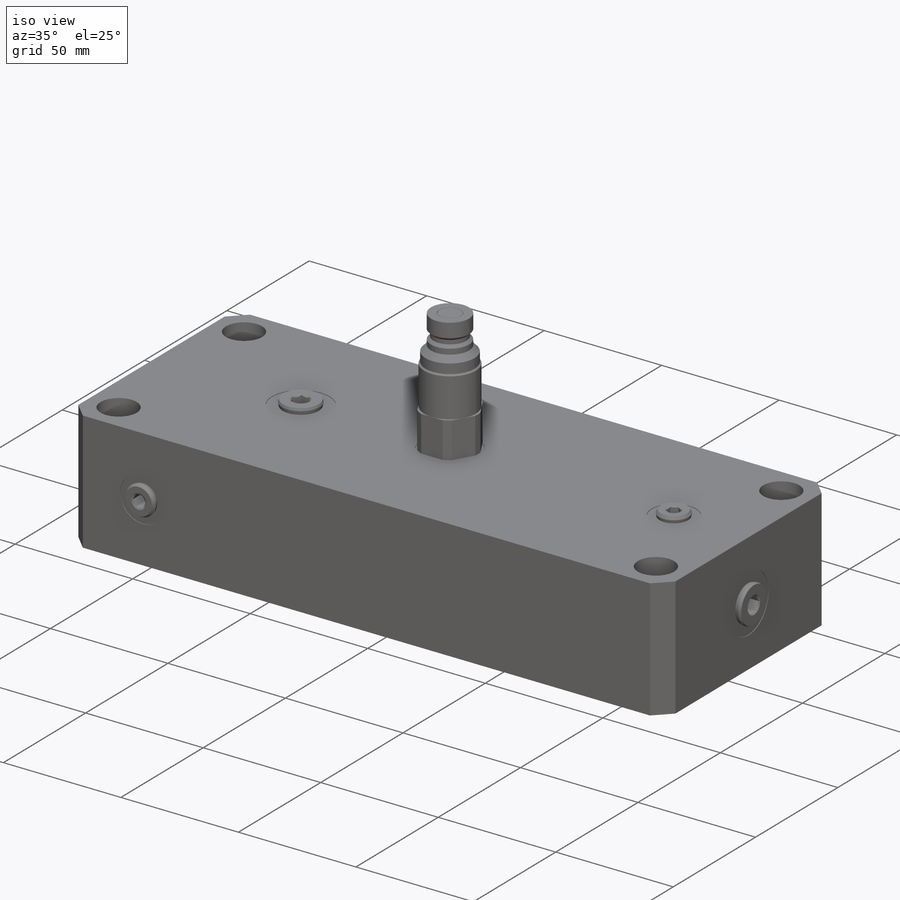
[diagram: iso view]
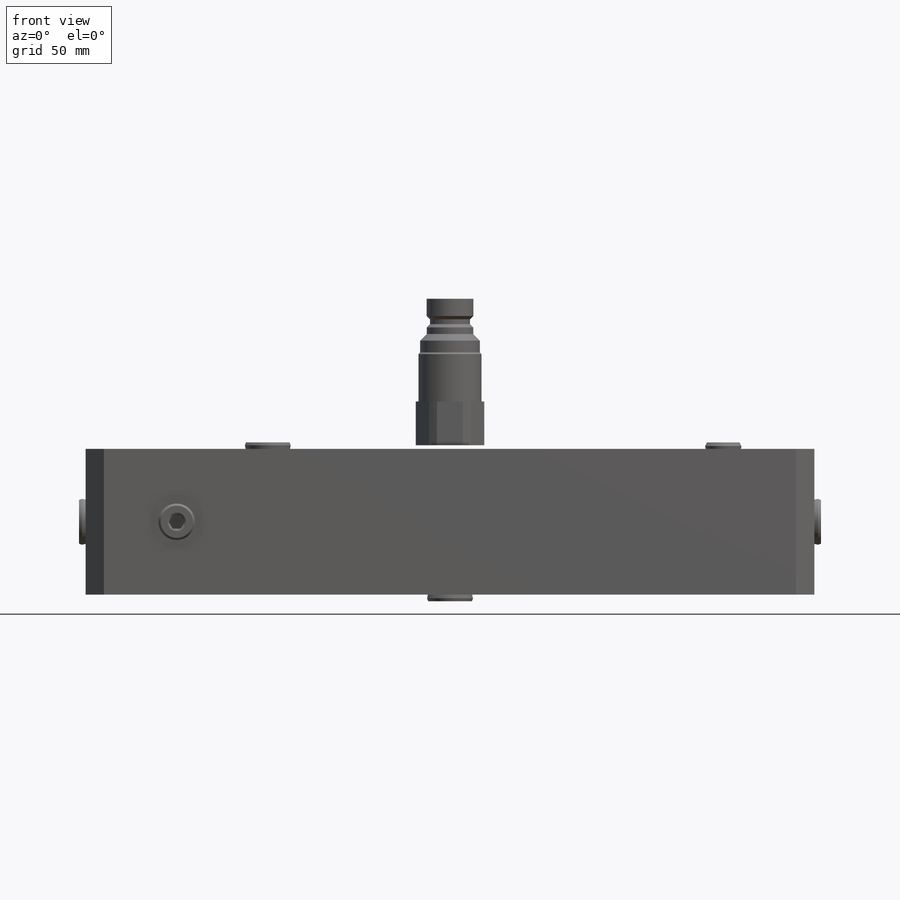
[diagram: front view]
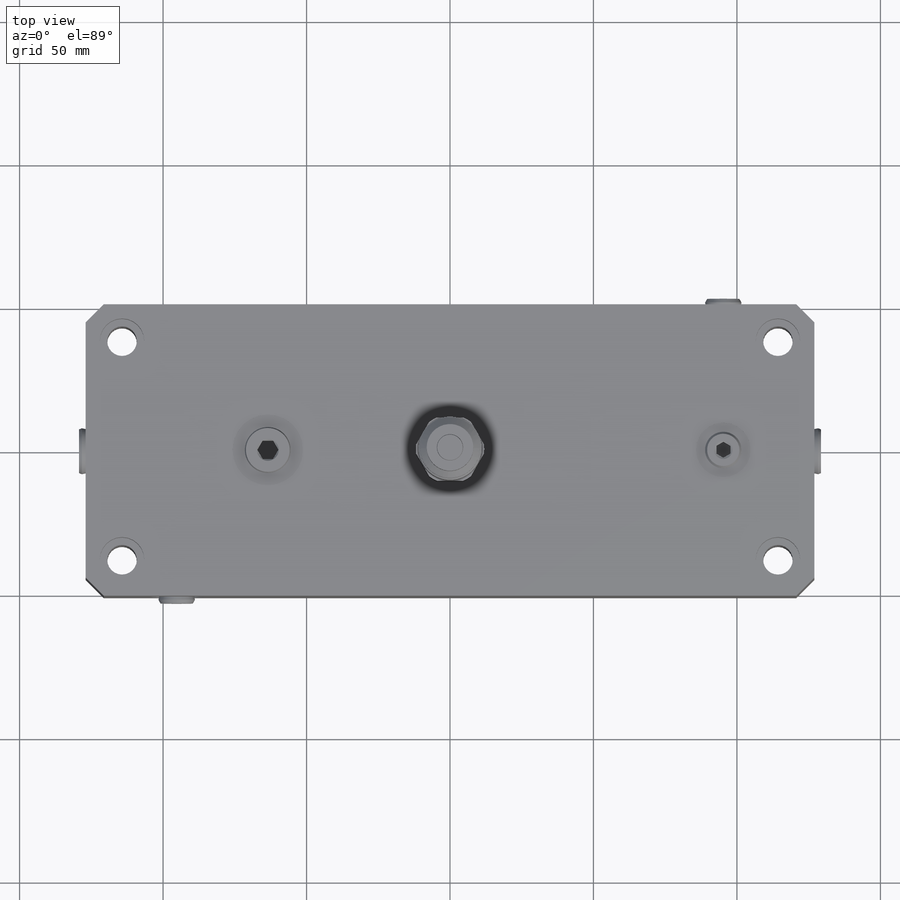
[diagram: top view]
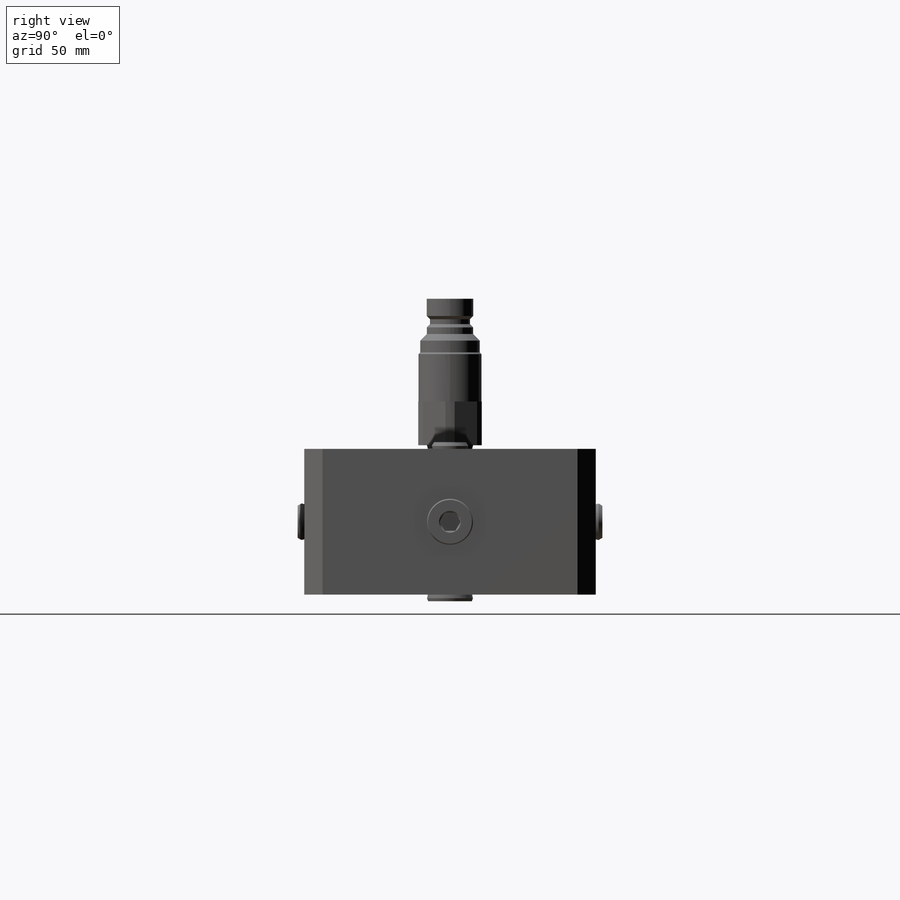
[diagram: right view]
SOLIDWORKS PART (.sldprt)
format: sldprt  version: not decoded by parser v0  size: 3,194,368 bytes
history: native  units: mm
features: sketch x17, move_body x16, hole x8, plane x6, material x1, extrude x1 + 16 further entries (+91 scaffold rows collapsed; 68 parser-record rows omitted)
feature tree (224):
  scaffold x91  (default folders/planes/origin — collapsed)
  material  "Material <not specified>"
  sketch  "Sketch1"  dims[c1.D1=~101.579808mm c1.D2=~251.393353mm c2.D1=101.6mm c2.D2=254.0mm]
  extrude  "Boss-Extrude1"  Depth=50.8mm
  hole  "CBORE for 3/8 Socket Head Cap Screw"  Diameter=10.3124mm Depth=50.8mm
  sketch  "Sketch3"  dims[D1=12.7mm D2=12.7mm D3=88.9mm D4=241.3mm]
  sketch  "Sketch2"  dims[hole-wizard template sketch: 42 standard entries collapsed; hole parameters kept: c12.Thru Hole Depth=50.8mm c12.C'Bore Dia.=15.4686mm c12.C'Bore Depth=9.525mm]
  hole  "SAE 6 Spot Face"  Diameter=7.62mm Depth=8.89mm
  sketch  "Sketch7"  dims[D1=63.5mm]
  sketch  "Sketch8"  dims[hole-wizard template sketch: 33 standard entries collapsed; hole parameters kept: c8.Drill Angle=180.0deg]
  hole  "SAE 6 Spot Face2"  Diameter=7.62mm Depth=8.89mm
  sketch  "Sketch10"  dims[D1=63.5mm]
  sketch  "Sketch11"  dims[hole-wizard template sketch: 33 standard entries collapsed; hole parameters kept: c8.Drill Angle=180.0deg]
  hole  "SAE 6 Spot Face3"  Diameter=7.62mm Depth=8.89mm
  sketch  "Sketch13"  dims[D1=25.4mm]
  sketch  "Sketch14"  dims[hole-wizard template sketch: 33 standard entries collapsed; hole parameters kept: c8.Drill Angle=180.0deg]
  hole  "SAE 6 Spot Face4"  Diameter=7.62mm Depth=8.89mm
  sketch  "Sketch16"  dims[D1=25.4mm]
  sketch  "Sketch17"  dims[hole-wizard template sketch: 33 standard entries collapsed; hole parameters kept: c8.Drill Angle=180.0deg]
  hole  "SAE 4 Spot Face"  Diameter=6.35mm Depth=6.985mm
  sketch  "Sketch19"  dims[D1=222.25mm]
  sketch  "Sketch20"  dims[hole-wizard template sketch: 29 standard entries collapsed; hole parameters kept: c8.Hole Depth=6.985mm c8.C'Bore Dia.=19.05mm c8.C'Bore Depth=0.254mm c8.D5=~14.816244mm c8.Drill Angle=180.0deg]
  hole  "SAE 4 Spot Face2"  Diameter=6.35mm Depth=7.112mm
  sketch  "Sketch22"  dims[D1=222.25mm D2=25.4mm]
  sketch  "Sketch23"  dims[hole-wizard template sketch: 29 standard entries collapsed; hole parameters kept: c8.Hole Depth=7.112mm c8.C'Bore Dia.=19.05mm c8.C'Bore Depth=0.254mm c8.D5=~14.816244mm c8.Drill Angle=180.0deg]
  hole  "SAE 4 Spot Face3"  Diameter=6.35mm Depth=7.112mm
  sketch  "Sketch25"  dims[D1=25.4mm D2=31.75mm]
  sketch  "Sketch26"  dims[hole-wizard template sketch: 29 standard entries collapsed; hole parameters kept: c8.Hole Depth=7.112mm c8.C'Bore Dia.=19.05mm c8.C'Bore Depth=0.254mm c8.D5=~14.816244mm c8.Drill Angle=180.0deg]
  "ilc30871166"
  parser-record x68  (decoder bookkeeping rows leaked as tree rows — omitted from the tree; the rows remain in map.json)
  move_body  "Body-Move/Copy34"
  "ilc30772760"
  move_body  "Body-Move/Copy2"
  "ilc30601166"
  move_body  "Body-Move/Copy4"
  "ilc306011662"
  move_body  "Body-Move/Copy6"
  "ilc306011663"
  move_body  "Body-Move/Copy8"
  "ilc306011664"
  move_body  "Body-Move/Copy10"
  "ilc30601144"
  move_body  "Body-Move/Copy12"
  "ilc306011442"
  move_body  "Body-Move/Copy14"
  "ilc306011443"
  move_body  "Body-Move/Copy16"
  "ilc70101700"
  move_body  "Body-Move/Copy18"
  "ilc30000144"
  move_body  "Body-Move/Copy20"
  "ilc70101703"
  move_body  "Body-Move/Copy22"
  "ilc300001442"
  move_body  "Body-Move/Copy24"
  "ilc10101601"
  move_body  "Body-Move/Copy32"
  plane  "Front Plane-ilc72322155"
  plane  "Top Plane-ilc72322155"
  plane  "Right Plane-ilc72322155"
  "ilc72322155"
  move_body  "Body-Move/Copy36"
  plane  "Front Plane-ilc723221552"
  plane  "Top Plane-ilc723221552"
  plane  "Right Plane-ilc723221552"
  "ilc723221552"
  move_body  "Body-Move/Copy38"
decode coverage: 26 of 42 modeling features carry decoded parameters; 16 rows unclassified (native names shown)
note: ~ marks probable driven/reference dimensions
summary: Diameter pulled from absorbed wizard sketch
note: suppression state not decoded; provenance and decode notes live in map.json
